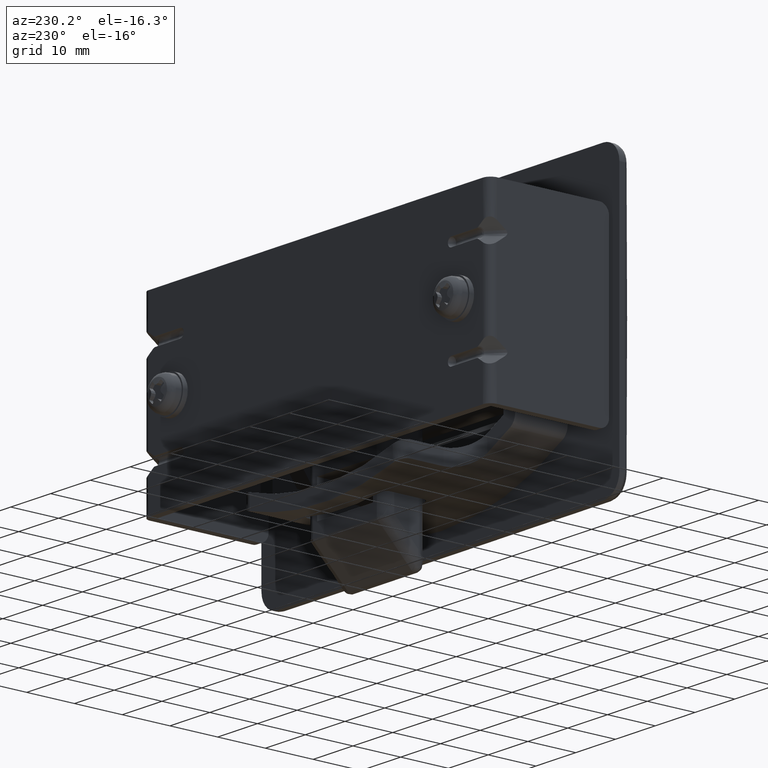
[diagram: clean part render]
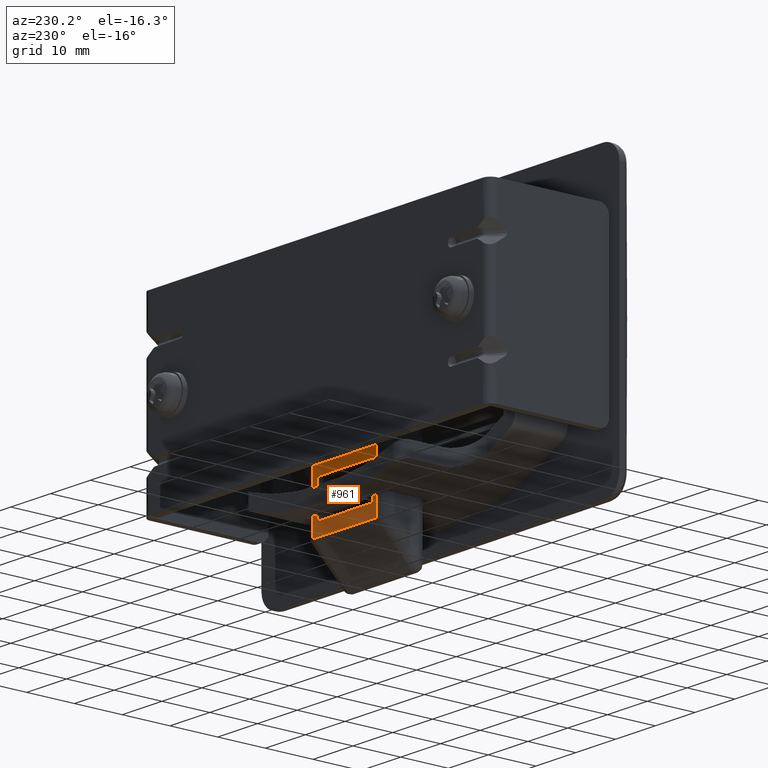
[diagram: same view with one face highlighted and labeled with its STEP entity id]
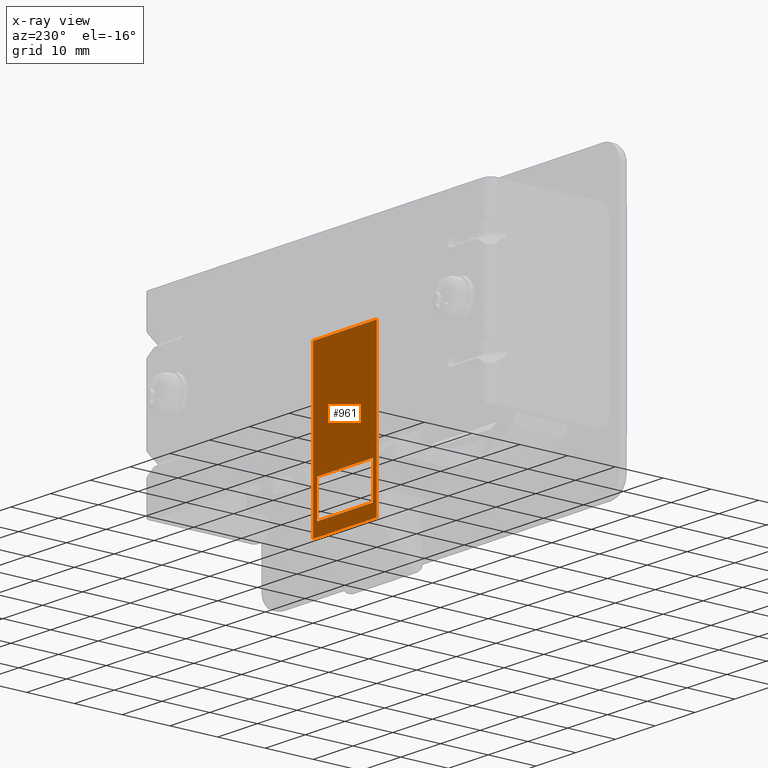
[diagram: x-ray of the same camera — body ghosted, the highlighted face saturated]
A machine part, auxiliary view. The second image highlights one B-rep face of the part: STEP entity #961.
The next image is the same camera in x-ray: the body ghosted, the highlighted face saturated — about 0% of this face is hidden behind the body in this view.
In plain terms, the highlighted face is a freeform B-spline surface patch.
Its self-contained STEP definition (entity closure, byte-faithful):
#54=CARTESIAN_POINT('',(7.0,20.0,10.999999999995060));
#55=VERTEX_POINT('',#54);
#61=CARTESIAN_POINT('',(7.0,20.0,3.499999999995055));
#62=VERTEX_POINT('',#61);
#63=CARTESIAN_POINT('',(7.0,20.0,10.999999999995060));
#64=CARTESIAN_POINT('',(7.0,20.0,3.499999999995055));
#65=QUASI_UNIFORM_CURVE('',1,(#63,#64),.UNSPECIFIED.,.F.,.U.);
#66=EDGE_CURVE('',#55,#62,#65,.T.);
#116=CARTESIAN_POINT('',(-7.0,20.0,3.499999999995055));
#117=VERTEX_POINT('',#116);
#123=CARTESIAN_POINT('',(-7.0,20.0,10.999999999995060));
#124=VERTEX_POINT('',#123);
#125=CARTESIAN_POINT('',(-7.0,20.0,10.999999999995060));
#126=CARTESIAN_POINT('',(-7.0,20.0,3.499999999995055));
#127=QUASI_UNIFORM_CURVE('',1,(#125,#126),.UNSPECIFIED.,.F.,.U.);
#128=EDGE_CURVE('',#124,#117,#127,.T.);
#181=CARTESIAN_POINT('',(-7.0,20.0,3.499999999995055));
#182=CARTESIAN_POINT('',(7.0,20.0,3.499999999995055));
#183=QUASI_UNIFORM_CURVE('',1,(#181,#182),.UNSPECIFIED.,.F.,.U.);
#184=EDGE_CURVE('',#117,#62,#183,.T.);
#199=CARTESIAN_POINT('',(-7.0,20.0,10.999999999995060));
#200=CARTESIAN_POINT('',(7.0,20.0,10.999999999995060));
#201=QUASI_UNIFORM_CURVE('',1,(#199,#200),.UNSPECIFIED.,.F.,.U.);
#202=EDGE_CURVE('',#124,#55,#201,.T.);
#449=CARTESIAN_POINT('',(8.000000000024210,20.0,0.792893218799293));
#450=VERTEX_POINT('',#449);
#492=CARTESIAN_POINT('',(8.000000000024210,20.0,33.999999999995048));
#493=VERTEX_POINT('',#492);
#511=CARTESIAN_POINT('',(8.000000000024210,20.0,33.999999999995048));
#512=CARTESIAN_POINT('',(8.000000000024210,20.0,0.792893218799293));
#513=QUASI_UNIFORM_CURVE('',1,(#511,#512),.UNSPECIFIED.,.F.,.U.);
#514=EDGE_CURVE('',#493,#450,#513,.T.);
#574=CARTESIAN_POINT('',(-8.000000000024210,20.0,0.792893218799293));
#575=VERTEX_POINT('',#574);
#659=CARTESIAN_POINT('',(-8.000000000024210,20.0,33.999999999995048));
#660=VERTEX_POINT('',#659);
#674=CARTESIAN_POINT('',(-8.000000000024210,20.0,0.792893218799293));
#675=CARTESIAN_POINT('',(-8.000000000024210,20.0,33.999999999995048));
#676=QUASI_UNIFORM_CURVE('',1,(#674,#675),.UNSPECIFIED.,.F.,.U.);
#677=EDGE_CURVE('',#575,#660,#676,.T.);
#925=CARTESIAN_POINT('',(-8.000000000024210,20.0,33.999999999995048));
#926=CARTESIAN_POINT('',(8.000000000024210,20.0,33.999999999995048));
#927=QUASI_UNIFORM_CURVE('',1,(#925,#926),.UNSPECIFIED.,.F.,.U.);
#928=EDGE_CURVE('',#660,#493,#927,.T.);
#940=CARTESIAN_POINT('',(-8.799199969015525,20.0,-0.865801700559619));
#941=CARTESIAN_POINT('',(-8.799199969015525,20.0,35.658695810037983));
#942=CARTESIAN_POINT('',(8.799200398168965,20.0,-0.865801700559619));
#943=CARTESIAN_POINT('',(8.799200398168965,20.0,35.658695810037983));
#944=B_SPLINE_SURFACE_WITH_KNOTS('',1,1,((#940,#942),(#941,#943)),.UNSPECIFIED.,.F.,.F.,.U.,(2,2),(2,2),(0.0,36.524497510597598),(0.0,17.598400367184489),.UNSPECIFIED.);
#945=CARTESIAN_POINT('',(-8.000000000024210,20.0,0.792893218799293));
#946=CARTESIAN_POINT('',(8.000000000024210,20.0,0.792893218799293));
#947=QUASI_UNIFORM_CURVE('',1,(#945,#946),.UNSPECIFIED.,.F.,.U.);
#948=EDGE_CURVE('',#575,#450,#947,.T.);
#949=ORIENTED_EDGE('',*,*,#948,.F.);
#950=ORIENTED_EDGE('',*,*,#677,.T.);
#951=ORIENTED_EDGE('',*,*,#928,.T.);
#952=ORIENTED_EDGE('',*,*,#514,.T.);
#953=EDGE_LOOP('',(#949,#950,#951,#952));
#954=FACE_OUTER_BOUND('',#953,.T.);
#955=ORIENTED_EDGE('',*,*,#128,.T.);
#956=ORIENTED_EDGE('',*,*,#184,.T.);
#957=ORIENTED_EDGE('',*,*,#66,.F.);
#958=ORIENTED_EDGE('',*,*,#202,.F.);
#959=EDGE_LOOP('',(#955,#956,#957,#958));
#960=FACE_BOUND('',#959,.T.);
#961=ADVANCED_FACE('',(#954,#960),#944,.T.);